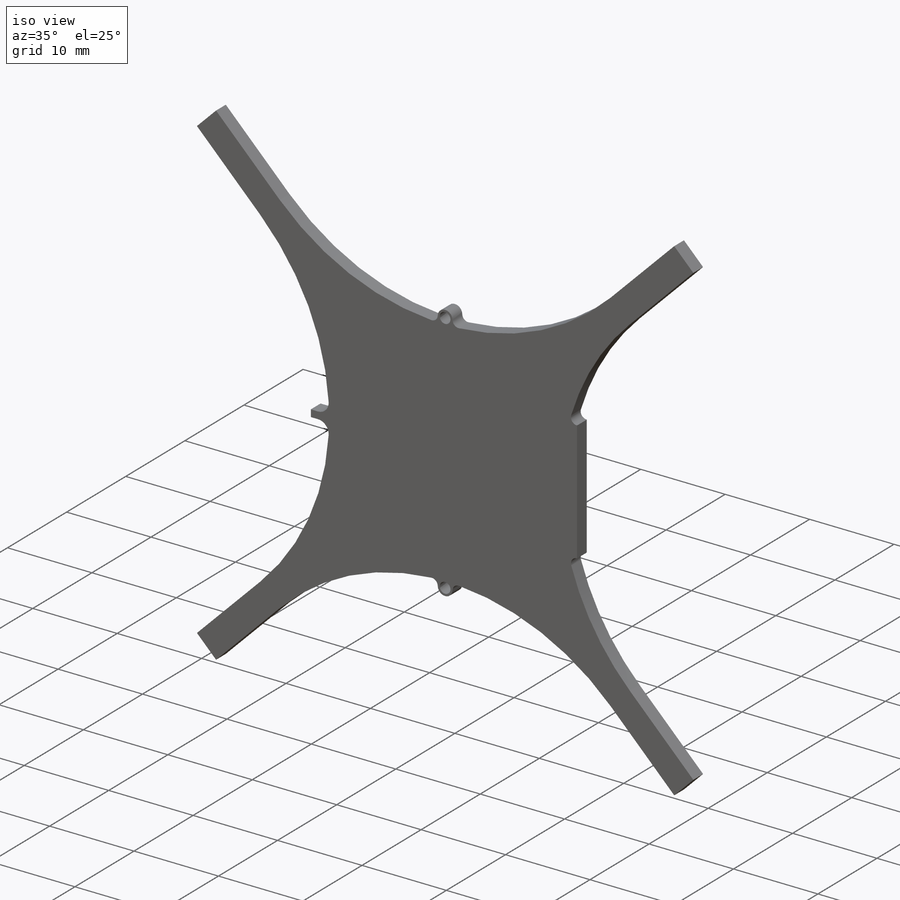
[diagram: iso view]
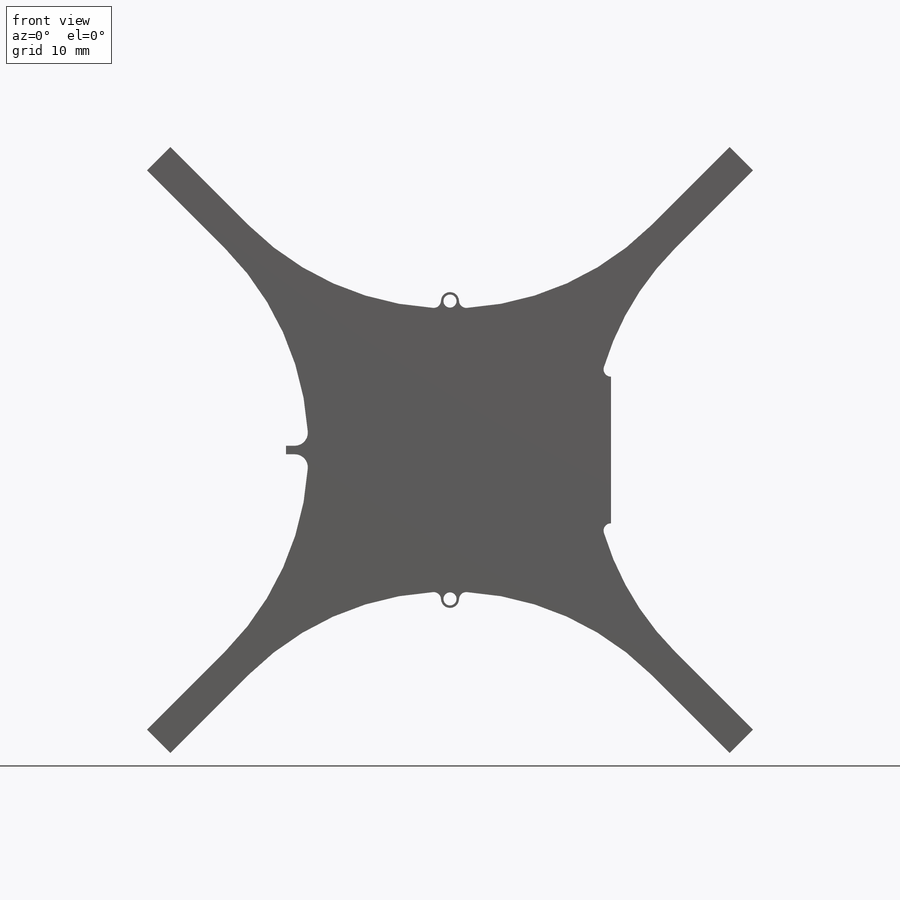
[diagram: front view]
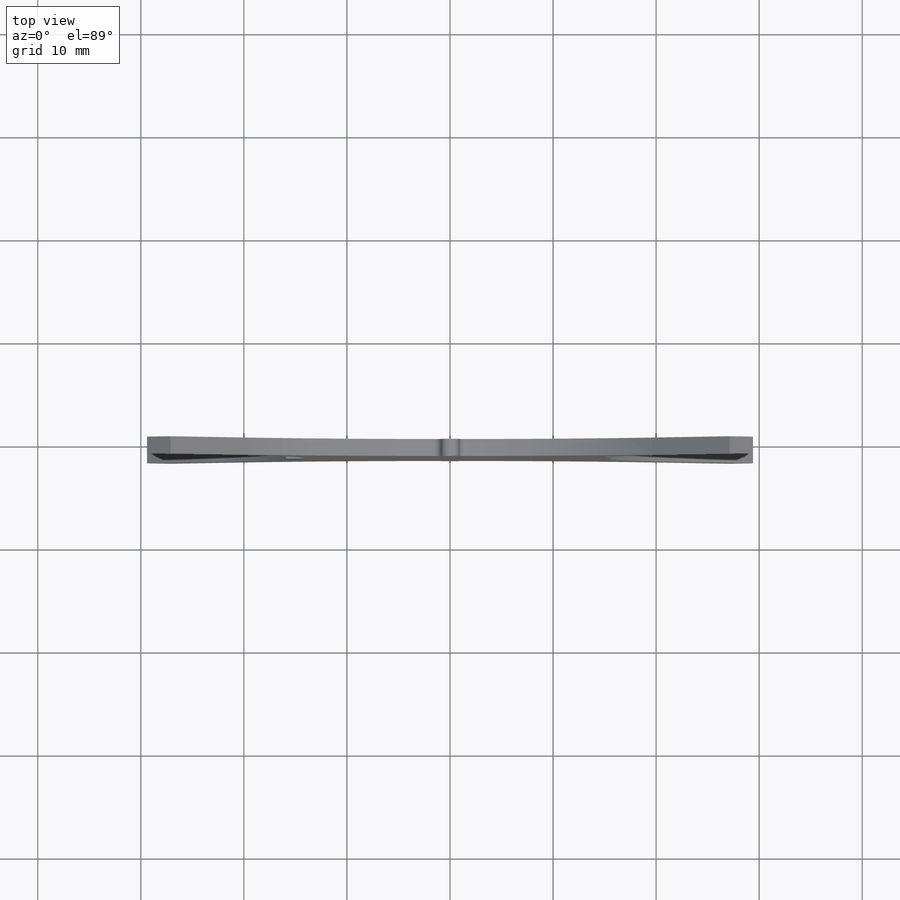
[diagram: top view]
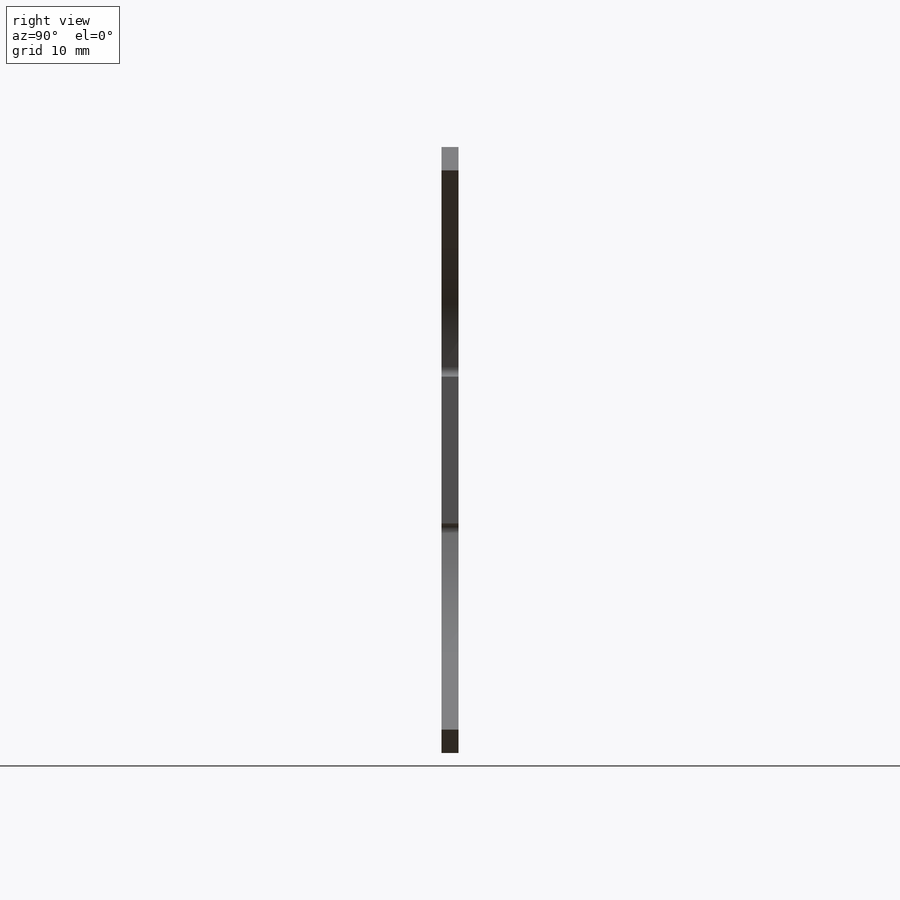
[diagram: right view]
SOLIDWORKS PART (.sldprt)
format: sldprt  version: not decoded by parser v0  size: 239,616 bytes
history: native  units: mm
features: fillet x3, material x1, sketch x1, extrude x1 (+13 scaffold rows collapsed)
feature tree (19):
  scaffold x13  (default folders/planes/origin — collapsed)
  material  "Material <not specified>"
  sketch  "Sketch1"  dims[c1.D2=~27.707723mm c1.D10=1.725mm c1.D11=~1.040219mm c2.D10=1.75mm c2.D12=~1.269562mm c2.D1=79.95mm c2.D2=27.55mm c2.D3=27.55mm c3.D2=~41.56805mm c3.D1=~41.44738mm c4.D2=~41.56805mm c4.D4=~47.205203mm c5.D4=135.0deg c5.D5=~10.58195mm c5.D6=~10.667277mm c5.D7=3.2mm c5.D8=39.975mm c5.D11=0.3mm c6.D11=~14.449083mm c6.D12=~0.240219mm c6.D13=~15.618947mm c6.D14=7.115mm c6.D15=~0.411387mm c6.D16=~2.165802mm c6.D3=4.0 c6.D9=4.0 c6.D5=4.0]
  extrude  "Boss-Extrude1"  Depth=1.65mm
  fillet  "Fillet1"  Radius=0.7112mm
  fillet  "Fillet2"  Radius=0.7112mm
  fillet  "Fillet3"  Radius=1.27mm
decode coverage: 5 of 5 modeling features carry decoded parameters
note: ~ marks probable driven/reference dimensions
note: suppression state not decoded; provenance and decode notes live in map.json
